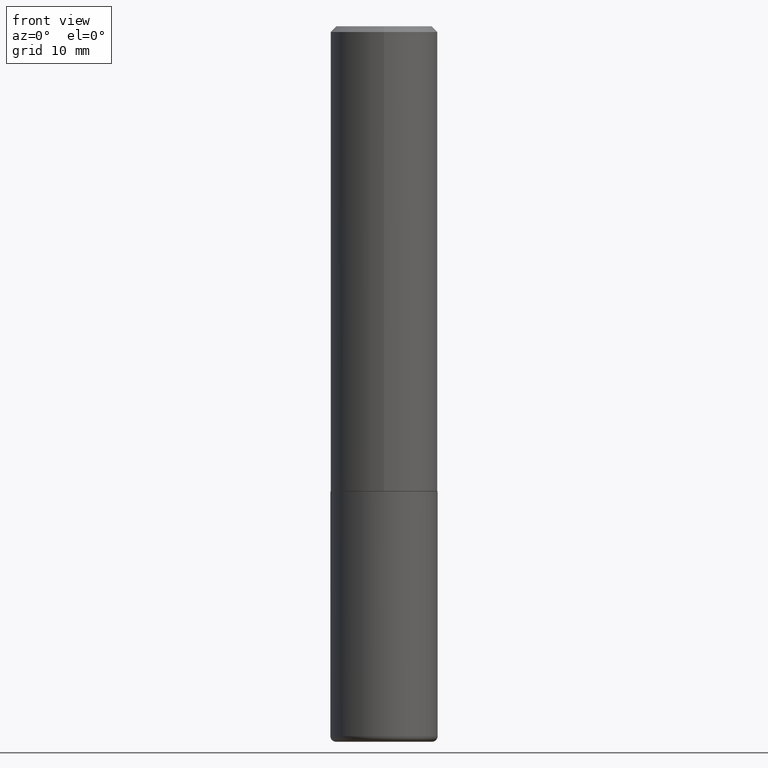
[diagram: clean part render]
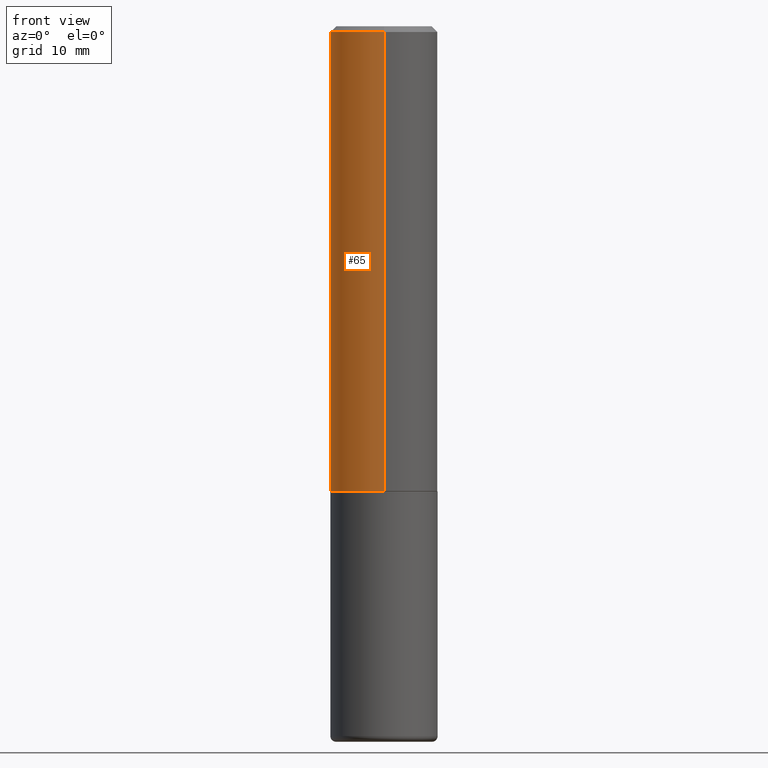
[diagram: same view with one face highlighted and labeled with its STEP entity id]
A machine part, front view. The second image highlights one B-rep face of the part: STEP entity #65.
In plain terms, the highlighted cylindrical surface (partial cylindrical patch) has radius 4.7625 mm, axis along (-0, 0, 1).
Its self-contained STEP definition (entity closure, byte-faithful):
#2 = AXIS2_PLACEMENT_3D ( 'NONE', #152, #216, #248 ) ;
#6 = CARTESIAN_POINT ( 'NONE',  ( 4.862456832815075803E-31, -7.023748775034694809E-17, -0.02000000000000008021 ) ) ;
#31 = EDGE_CURVE ( 'NONE', #260, #278, #238, .T. ) ;
#40 = CYLINDRICAL_SURFACE ( 'NONE', #2, 0.1875000000000000555 ) ;
#46 = CARTESIAN_POINT ( 'NONE',  ( -1.286343374582161379E-15, -0.1875000000000000555, -0.01999999999999942449 ) ) ;
#62 = AXIS2_PLACEMENT_3D ( 'NONE', #252, #384, #90 ) ;
#65 = ADVANCED_FACE ( 'NONE', ( #109 ), #40, .T. ) ;
#75 = EDGE_LOOP ( 'NONE', ( #325, #206, #316, #145 ) ) ;
#90 = DIRECTION ( 'NONE',  ( -6.982962677686266711E-15, -1.000000000000000000, 2.913971193241878794E-15 ) ) ;
#101 = EDGE_CURVE ( 'NONE', #260, #250, #141, .T. ) ;
#109 = FACE_OUTER_BOUND ( 'NONE', #75, .T. ) ;
#118 = CARTESIAN_POINT ( 'NONE',  ( 1.332267629550188046E-15, 0.1875000000000000555, -6.584764476595000345E-16 ) ) ;
#141 = CIRCLE ( 'NONE', #62, 0.1875000000000001388 ) ;
#145 = ORIENTED_EDGE ( 'NONE', *, *, #336, .F. ) ;
#152 = CARTESIAN_POINT ( 'NONE',  ( 0.000000000000000000, 0.000000000000000000, 0.000000000000000000 ) ) ;
#163 = VECTOR ( 'NONE', #406, 39.37007874015748143 ) ;
#173 = DIRECTION ( 'NONE',  ( -2.431228416407527584E-29, 3.511874387517332860E-15, 1.000000000000000000 ) ) ;
#206 = ORIENTED_EDGE ( 'NONE', *, *, #101, .T. ) ;
#207 = CIRCLE ( 'NONE', #271, 0.1874999999999999722 ) ;
#216 = DIRECTION ( 'NONE',  ( -2.431228416407527584E-29, 3.511874387517332860E-15, 1.000000000000000000 ) ) ;
#230 = VECTOR ( 'NONE', #173, 39.37007874015748143 ) ;
#238 = LINE ( 'NONE', #118, #163 ) ;
#248 = DIRECTION ( 'NONE',  ( -6.982962677686265922E-15, -1.000000000000000000, 3.511874387517332466E-15 ) ) ;
#250 = VERTEX_POINT ( 'NONE', #315 ) ;
#252 = CARTESIAN_POINT ( 'NONE',  ( 3.948314948245825329E-29, -5.703284005328150284E-15, -1.624000000000000110 ) ) ;
#260 = VERTEX_POINT ( 'NONE', #414 ) ;
#271 = AXIS2_PLACEMENT_3D ( 'NONE', #6, #356, #328 ) ;
#278 = VERTEX_POINT ( 'NONE', #410 ) ;
#301 = VERTEX_POINT ( 'NONE', #46 ) ;
#315 = CARTESIAN_POINT ( 'NONE',  ( -1.309305502066136354E-15, -0.1875000000000058564, -1.623999999999999666 ) ) ;
#316 = ORIENTED_EDGE ( 'NONE', *, *, #417, .T. ) ;
#325 = ORIENTED_EDGE ( 'NONE', *, *, #31, .F. ) ;
#328 = DIRECTION ( 'NONE',  ( -6.982962677686266711E-15, -1.000000000000000000, 3.505871591869138487E-15 ) ) ;
#330 = LINE ( 'NONE', #361, #230 ) ;
#336 = EDGE_CURVE ( 'NONE', #278, #301, #207, .T. ) ;
#356 = DIRECTION ( 'NONE',  ( -2.431228416407527584E-29, 3.511874387517332860E-15, 1.000000000000000000 ) ) ;
#361 = CARTESIAN_POINT ( 'NONE',  ( -1.309305502066175205E-15, -0.1875000000000000555, 6.584764476595000345E-16 ) ) ;
#384 = DIRECTION ( 'NONE',  ( -2.431228416407527584E-29, 3.511874387517332860E-15, 1.000000000000000000 ) ) ;
#406 = DIRECTION ( 'NONE',  ( -2.431228416407527584E-29, 3.511874387517332860E-15, 1.000000000000000000 ) ) ;
#410 = CARTESIAN_POINT ( 'NONE',  ( 1.309305502066175205E-15, 0.1874999999999999167, -0.02000000000000073941 ) ) ;
#414 = CARTESIAN_POINT ( 'NONE',  ( 1.332267629550208556E-15, 0.1874999999999944489, -1.624000000000000776 ) ) ;
#417 = EDGE_CURVE ( 'NONE', #250, #301, #330, .T. ) ;